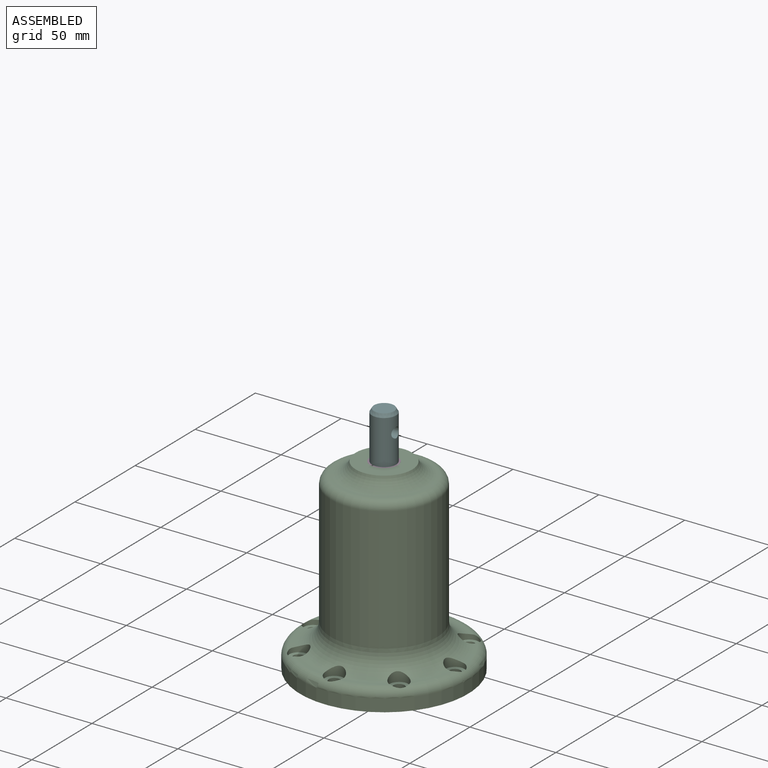
[diagram: assembled view]
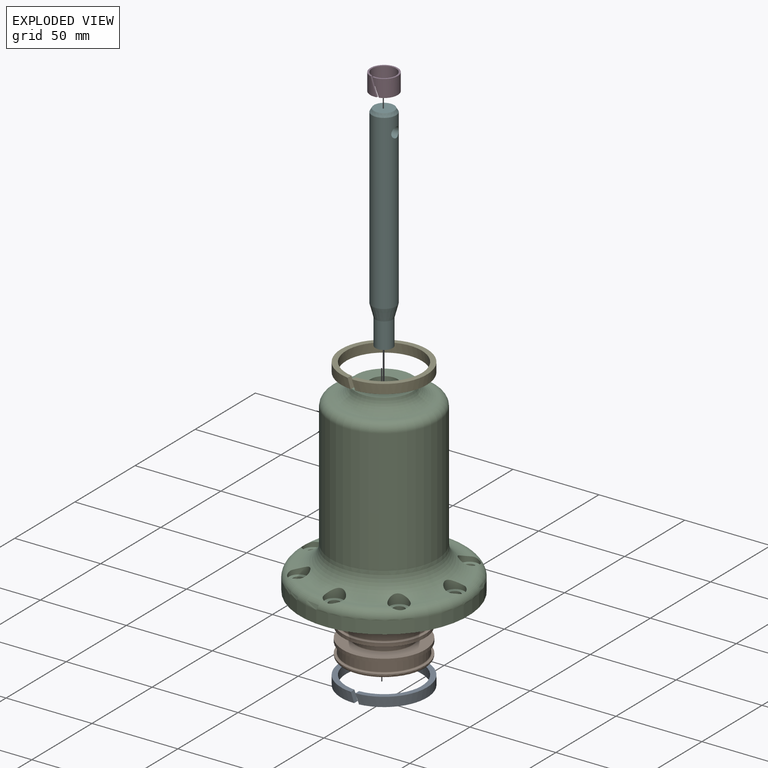
[diagram: exploded view]
GUIDED TOUR — MATED ASSEMBLY (Onshape document 48f4fec24a227de604a5e7d9, AutoMate assembly 48f4fec24a227de604a5e7d9_6dd7812956a203c2450e7267_f71f1b30207f0befcec05f34_default)

This assembly has 6 components, labeled P0..P5 below (a component is one placed occurrence of a part; the same part can appear more than once), held together by 7 mates. A mate is a constraint between two components; its type names the relative motion it leaves free:
  CYLINDRICAL — leaves both rotation about and translation along the listed axis free,
  FASTENED — locks the two components together rigidly (no relative motion),
  PLANAR — leaves sliding in the plane through the listed point (normal = the listed direction) and rotation about that normal free,
  SLIDER — leaves translation along the listed axis free.
Axis/direction vectors are unit vectors and 'through' points are millimeter coordinates, both in the assembly's world frame.

MATES
  1. PLANAR "Planar 2": P1 <-> P4, direction (0.000, 0.000, -1.000) through (0.00, 0.00, 26.60) mm
  2. CYLINDRICAL "Cylindrical 1": P4 <-> P1, axis (0.000, 0.000, 1.000) through (0.00, 0.00, 21.20) mm
  3. CYLINDRICAL "Cylindrical 3": P2 <-> P3, axis (0.000, 0.000, -1.000) through (0.00, 0.00, 100.00) mm
  4. SLIDER "Slider 1": P1 <-> P2, axis (0.000, 0.000, 1.000) through (0.00, 0.00, 4.00) mm
  5. PLANAR "Planar 1": P0 <-> P1, direction (0.000, 0.000, 1.000) through (0.01, 0.43, 10.15) mm
  6. CYLINDRICAL "Cylindrical 2": P0 <-> P1, axis (0.000, 0.000, 1.000) through (0.00, 0.00, 4.75) mm
  7. FASTENED "Fastened 1": P1 <-> P5, direction (0.000, 0.000, 1.000) through (0.00, 0.00, 27.85) mm

ASSEMBLY ORDER
  1. P1 — the base component [order heuristic]
  2. P0 [order heuristic]
  3. P2 [order heuristic]
  4. P4 [order heuristic]
  5. P5 [order heuristic]
  6. P3 [order heuristic]
Order-tag legend:
  [order heuristic] — this assembly is geometrically interlocked (no collision-free removal order exists), so components are listed in mate-graph order; insertion feasibility is not verified.

Of the 6 components, 1 carries the full construction recipe — the FeatureScript program that regenerates the part's solid from scratch; the rest are supplied as boundary geometry only.
Each toured component is shown spotlighted twice — in the assembled view, then in the exploded view, where a leader line traces a displaced component back to its assembled socket (saturated green if recipe-attached, orange if geometry-only; every other component desaturated gray) — followed by its recipe or geometry summary and the mates that hold it.
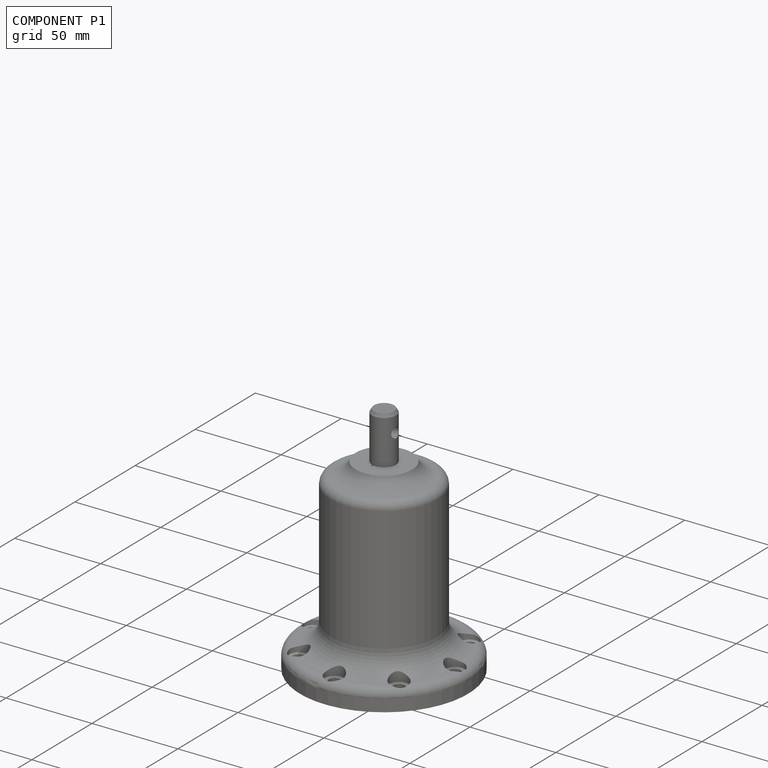
[diagram: component P1 — assembled]
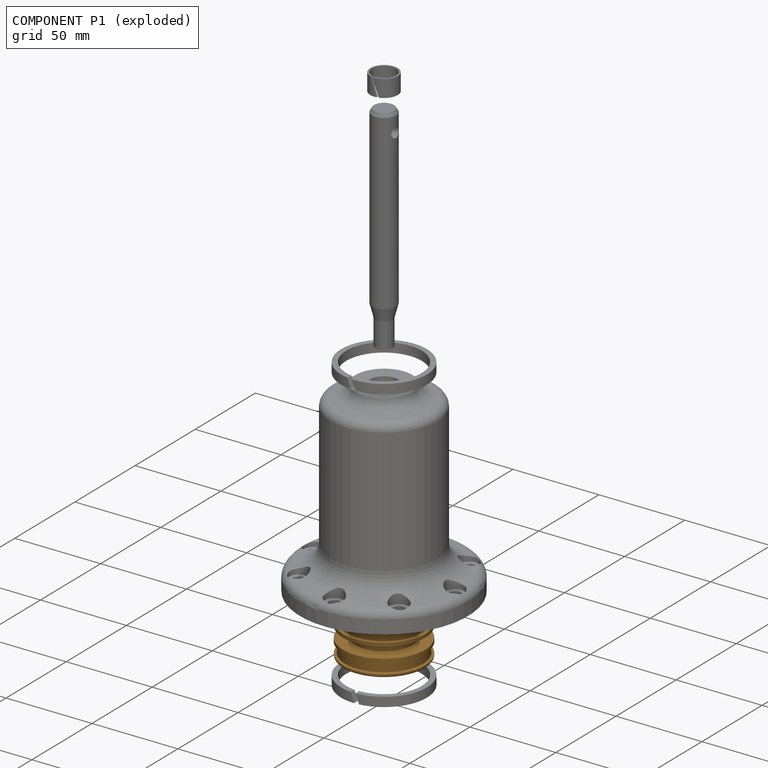
[diagram: component P1 — exploded]
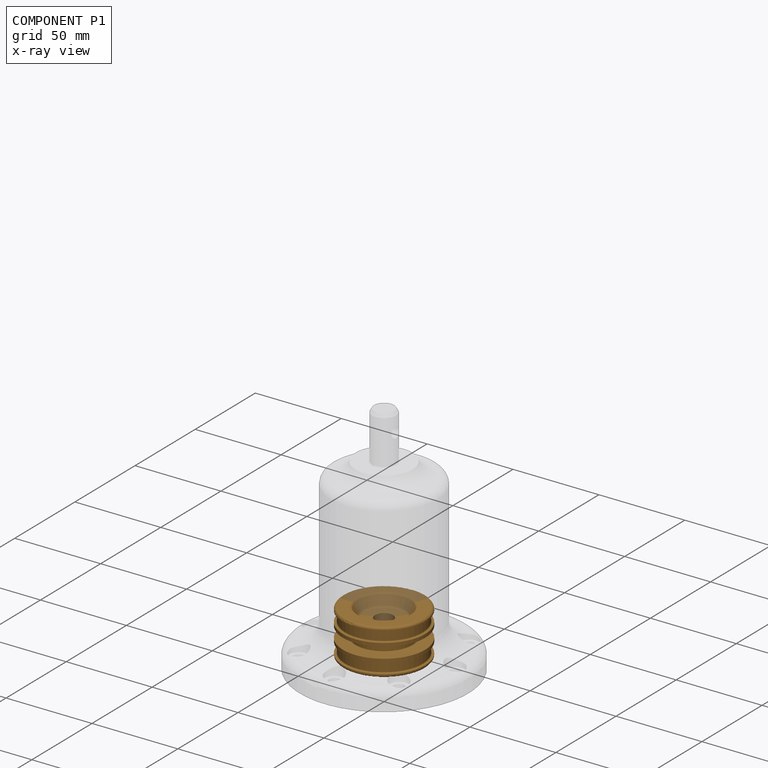
[diagram: component P1 — x-ray view]
COMPONENT P1 — geometry summary (no construction recipe available for this part):
  bounding box: 52.0 x 52.0 x 26.6 mm
  B-rep topology: 1 solid, 29 faces, 107 edges
  volume: 34067 mm^3 (47% of its bounding box)
  symmetry: revolution-symmetric about the z axis through its bounding-box center; mirror-symmetric across its x mid-plane, y mid-plane
Held by: PLANAR mate "Planar 2" to P4; CYLINDRICAL mate "Cylindrical 1" to P4; SLIDER mate "Slider 1" to P2; PLANAR mate "Planar 1" to P0; CYLINDRICAL mate "Cylindrical 2" to P0; FASTENED mate "Fastened 1" to P5.
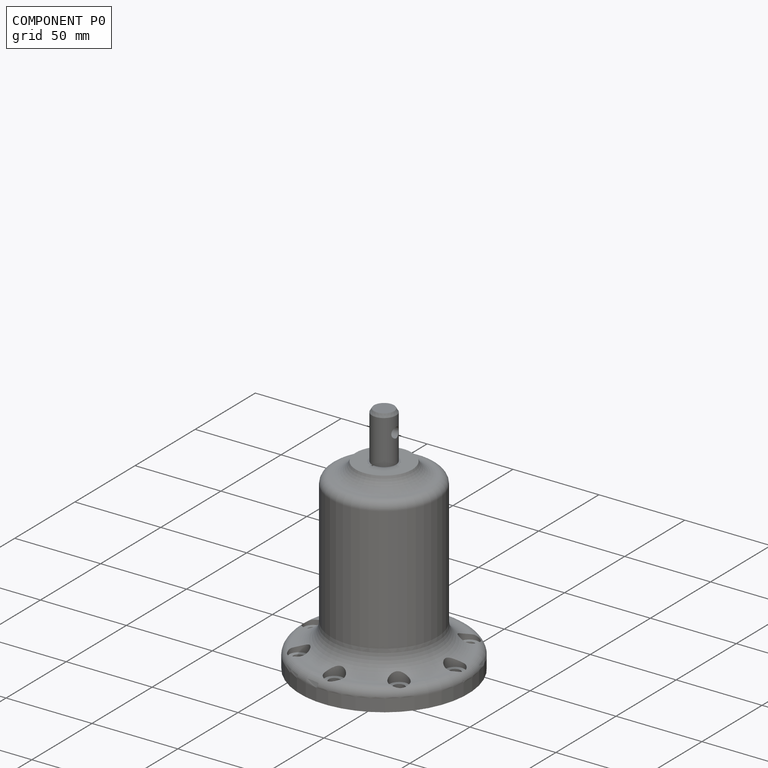
[diagram: component P0 — assembled]
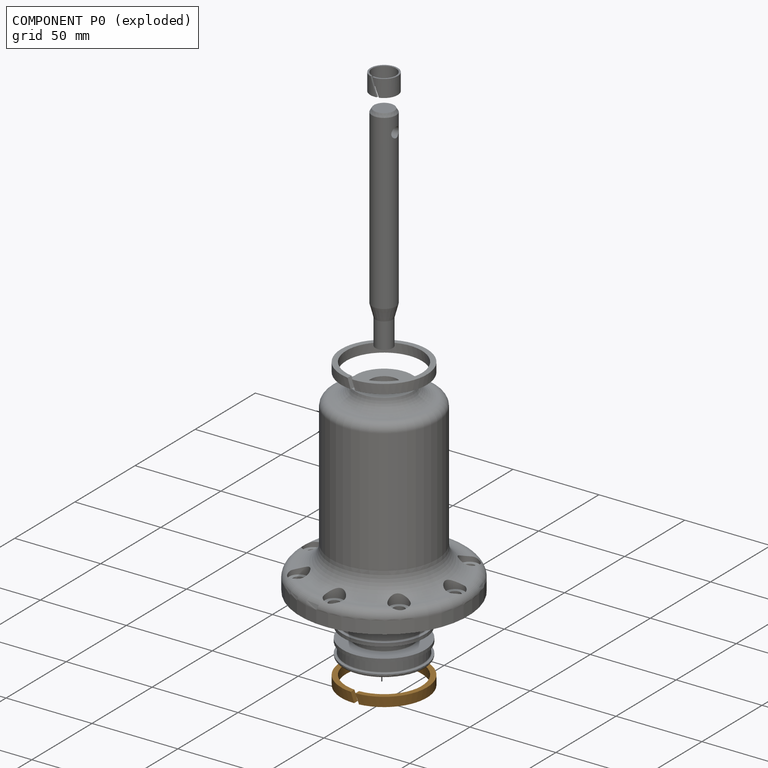
[diagram: component P0 — exploded]
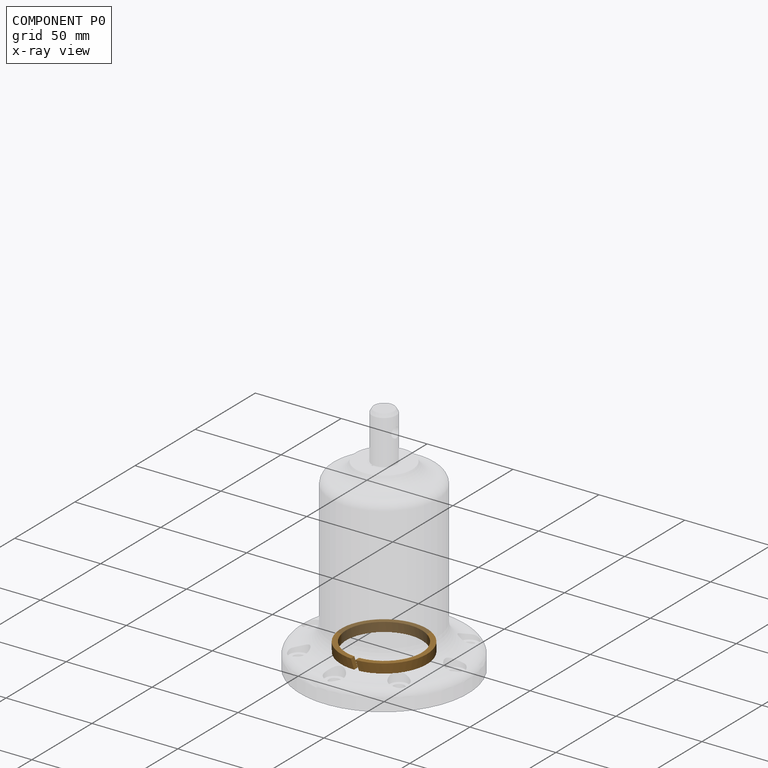
[diagram: component P0 — x-ray view]
COMPONENT P0 — geometry summary (no construction recipe available for this part):
  bounding box: 50.0 x 50.0 x 5.4 mm
  B-rep topology: 1 solid, 6 faces, 24 edges
  volume: 2349 mm^3 (17% of its bounding box)
  symmetry: 2-fold rotationally symmetric about the y axis
Held by: PLANAR mate "Planar 1" to P1; CYLINDRICAL mate "Cylindrical 2" to P1.
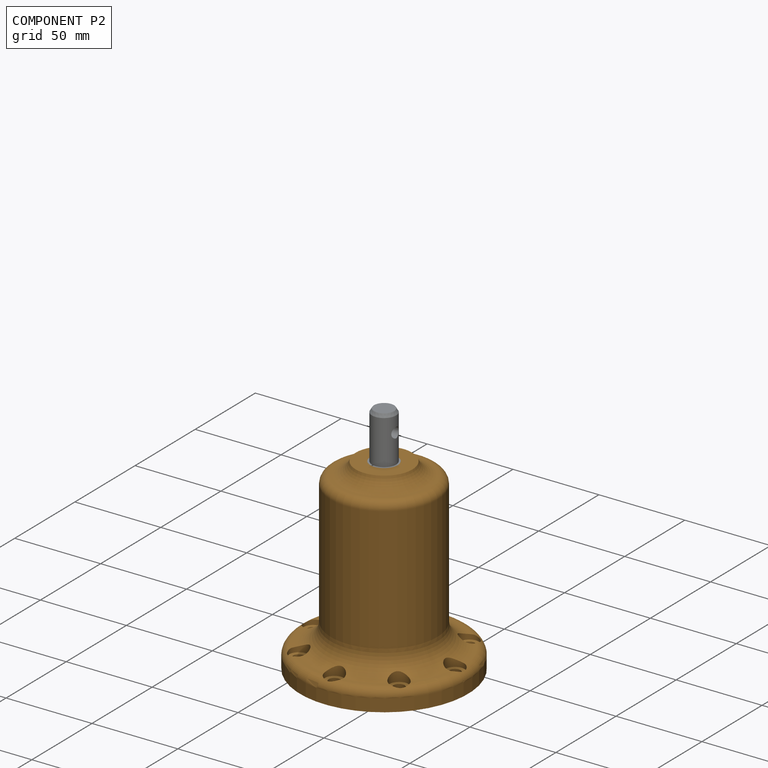
[diagram: component P2 — assembled]
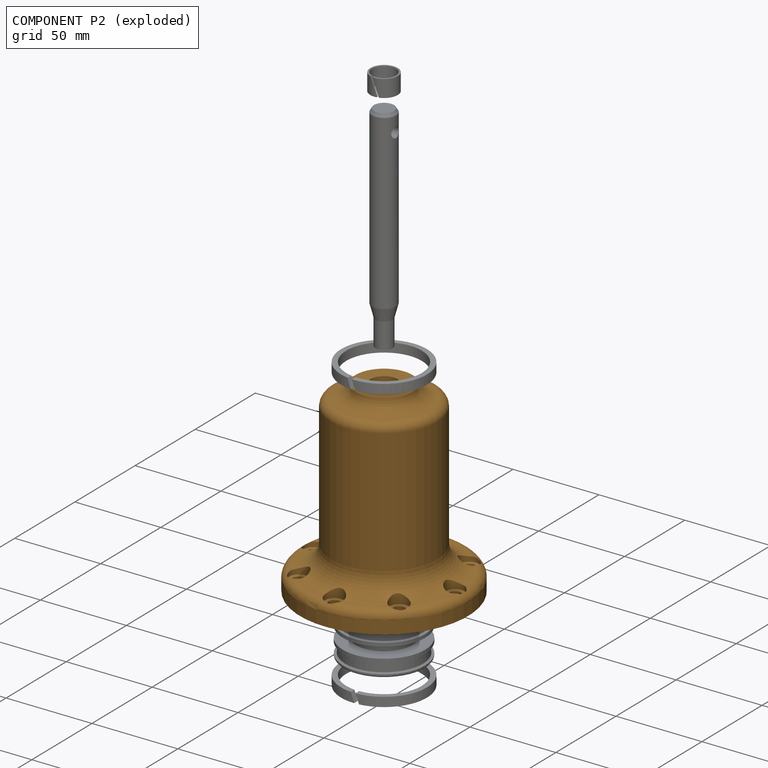
[diagram: component P2 — exploded]
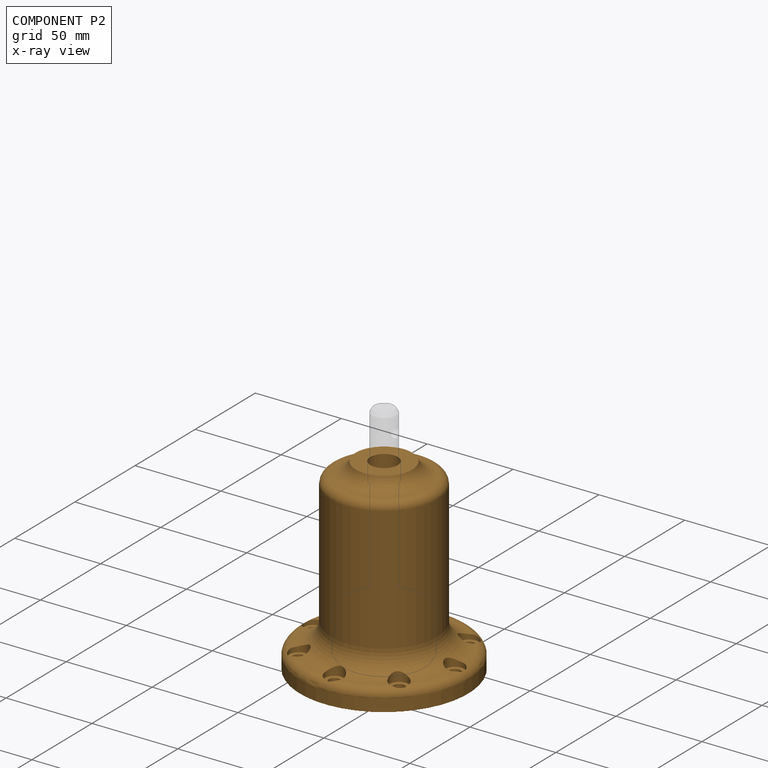
[diagram: component P2 — x-ray view]
COMPONENT P2 — geometry summary (no construction recipe available for this part):
  bounding box: 114.1 x 114.1 x 112.4 mm
  B-rep topology: 1 solid, 56 faces, 294 edges
  volume: 169365 mm^3 (12% of its bounding box)
  symmetry: mirror-symmetric across its x mid-plane
Held by: CYLINDRICAL mate "Cylindrical 3" to P3; SLIDER mate "Slider 1" to P1.
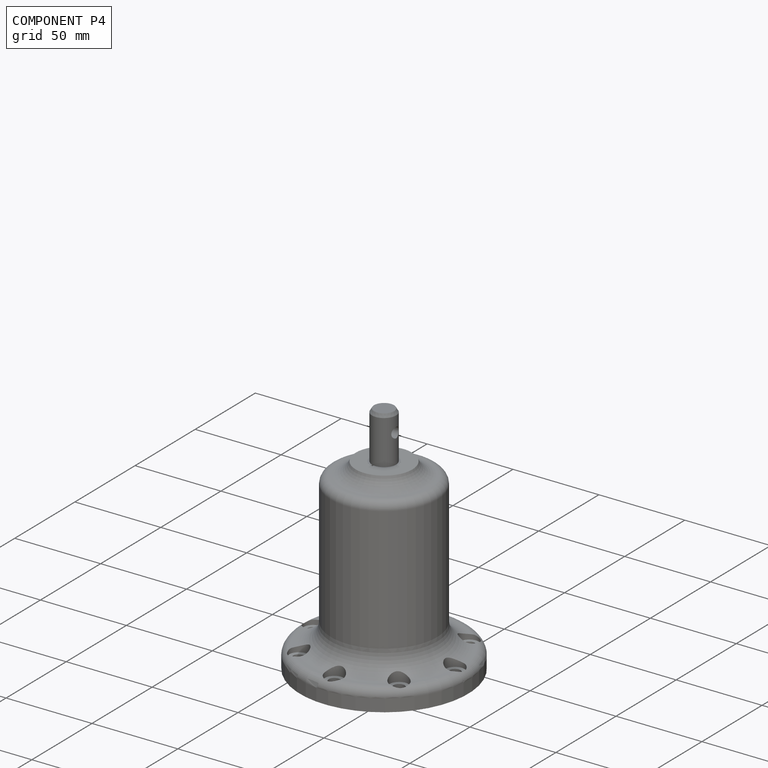
[diagram: component P4 — assembled]
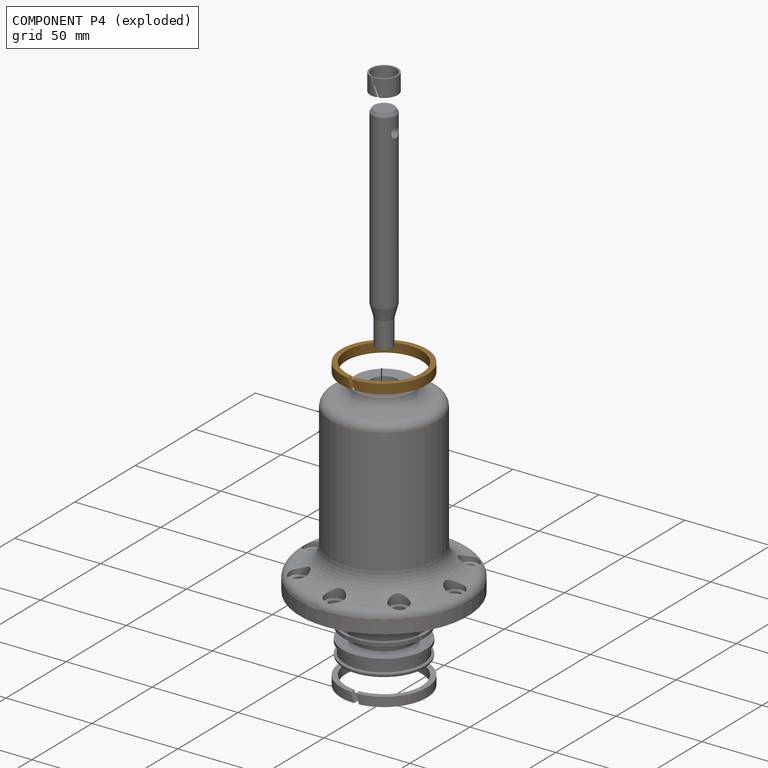
[diagram: component P4 — exploded]
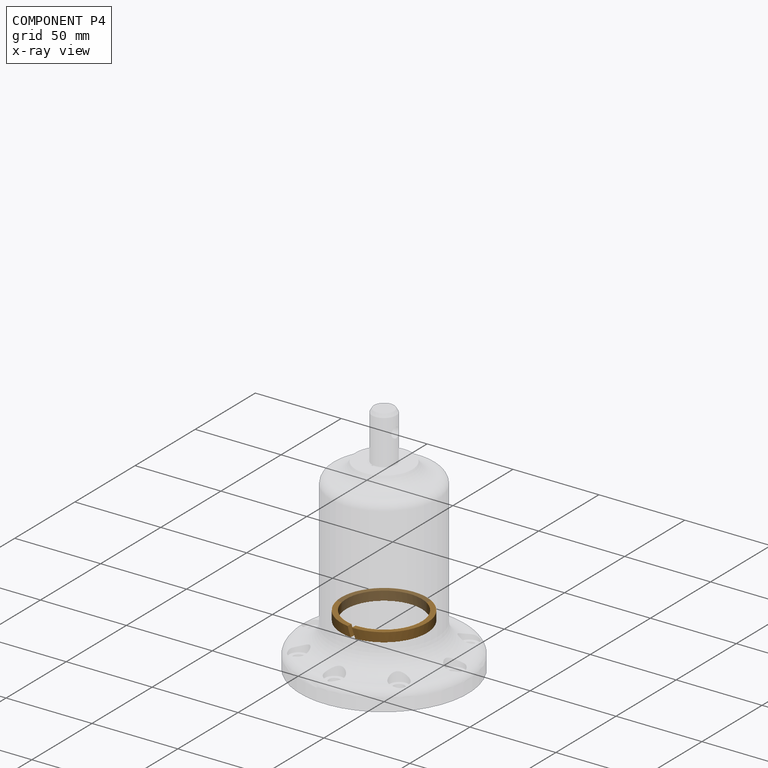
[diagram: component P4 — x-ray view]
COMPONENT P4 — geometry summary (no construction recipe available for this part):
  bounding box: 50.0 x 50.0 x 5.4 mm
  B-rep topology: 1 solid, 6 faces, 24 edges
  volume: 2349 mm^3 (17% of its bounding box)
  symmetry: 2-fold rotationally symmetric about the y axis
Held by: PLANAR mate "Planar 2" to P1; CYLINDRICAL mate "Cylindrical 1" to P1.
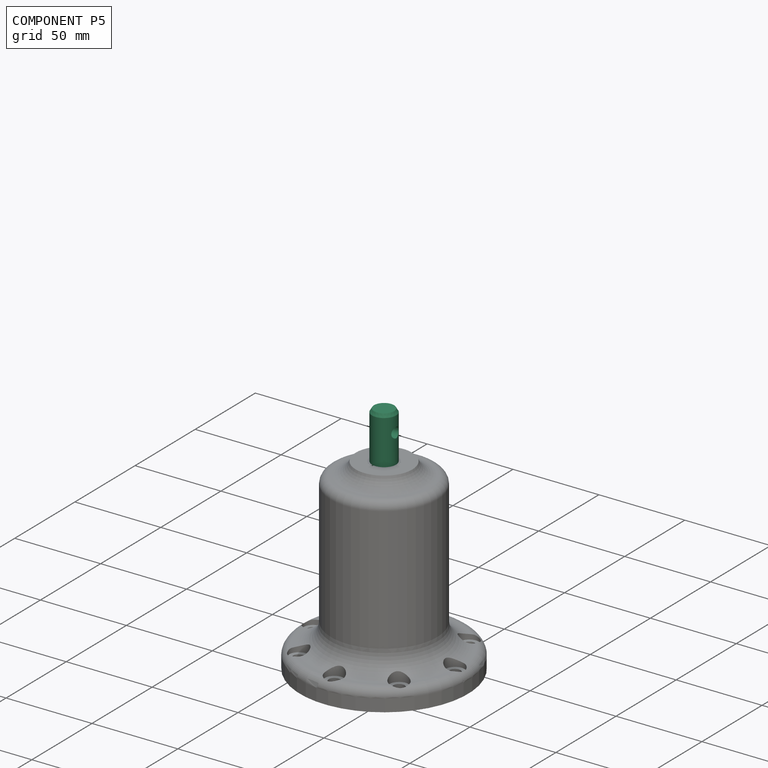
[diagram: component P5 — assembled]
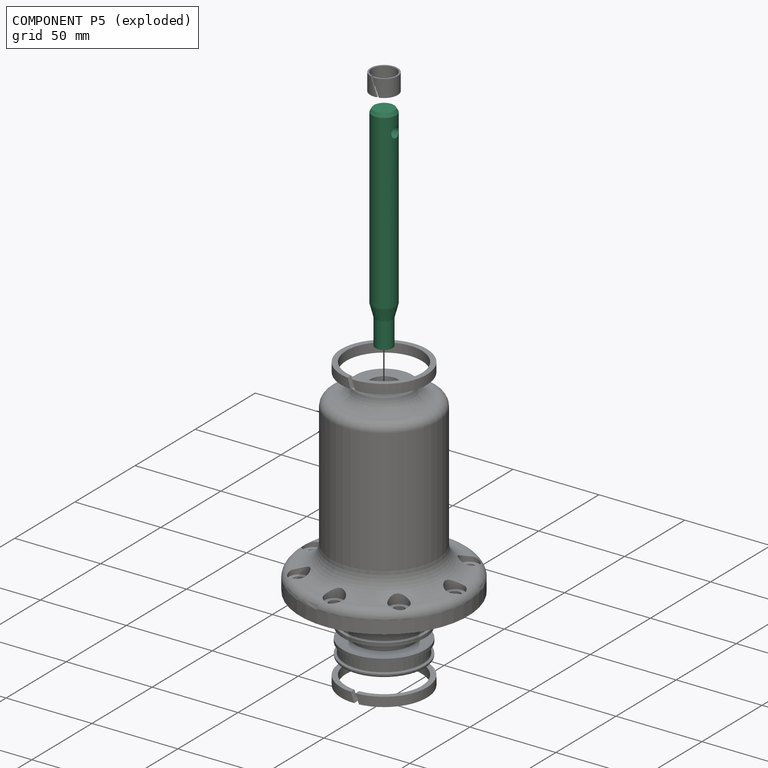
[diagram: component P5 — exploded]
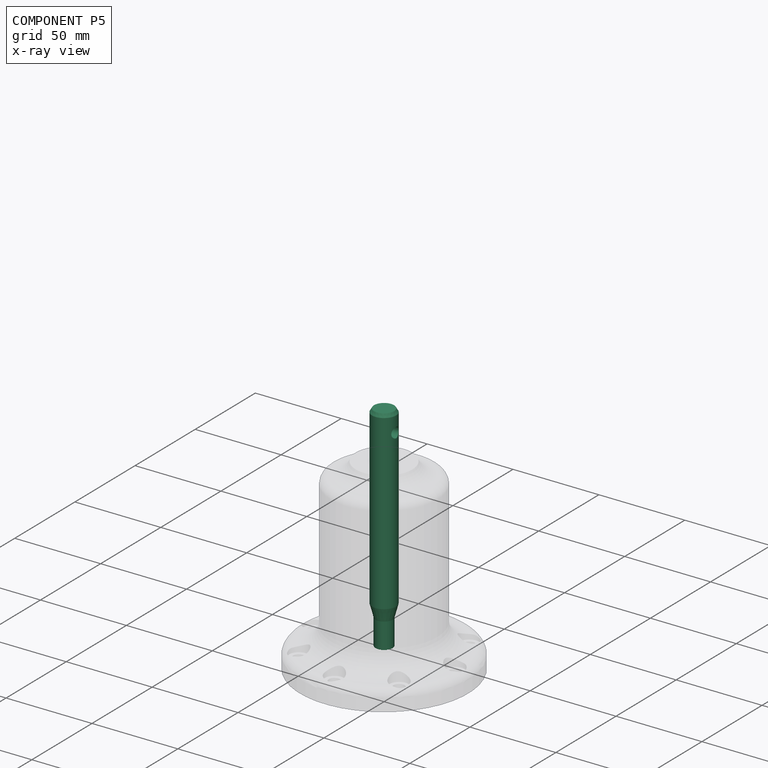
[diagram: component P5 — x-ray view]
COMPONENT P5 — recipe-attached (CADFS 00426651, mesh-verified: the recipe's output STEP matches this component's geometry to below the mesh-comparison resolution (tessellation chordal tolerance ~0.19 mm)).
Held by: FASTENED mate "Fastened 1" to P1.
Construction recipe (FeatureScript — the CAD program that rebuilds this solid; sketch coordinates are in the units given by the * unit suffixes, e.g. mm):

FeatureScript 1511;
import(path : "onshape/std/geometry.fs", version : "1511.0");
import(path : "onshape/std/common.fs", version : "1511.0");
const mm = millimeter;
const VERTEX = EntityType.VERTEX;
const EDGE = EntityType.EDGE;
const FACE = EntityType.FACE;
const BODY = EntityType.BODY;
function v(x, y){return vector(x, y);}
function OD(order){return orderDisambiguation(order);}
function OSD(set){return originalSetDisambiguation(set);}
function TD(topology){return topologyDisambiguation(topology);}
function TDD(query){return trueDependencyDisambiguation(query);}
function sQuery(a, b, c) {return sketchEntityQuery(a, b, c);}

annotation { "Feature Type Name" : "Feature", "Feature Type Description" : "" }
export const myFeature = defineFeature(function(context is Context, id is Id, definition is map)
    precondition{}
    {
        {
            var Q0;
            Q0=qCreatedBy(makeId("Top.planeOp"),FACE);
            var sketch = newSketch(context, id + "F0", { "sketchPlane" : qUnion([Q0])});
            skCircle(sketch, "E0", {"center": v(0, 0) * mm, "radius": 7 * mm});
            skSolve(sketch);
        }
        {
            var Q0;
            Q0 = qSketchRegion(id + "F0", true);
            extrude(context, id + "F1", {"entities" : qUnion([Q0]), "endBound" : BoundingType.SYMMETRIC, "depth" : 125 * mm, "offsetDistance" : 25 * mm, "hasSecondDirection" : true, "secondDirectionOppositeDirection" : true, "secondDirectionDepth" : 25 * mm});
        }
        {
            var Q0;
            Q0=qCreatedBy(makeId("Right.planeOp"),FACE);
            var sketch = newSketch(context, id + "F2", { "sketchPlane" : qUnion([Q0])});
            skCircle(sketch, "E1", {"center": v(0, 51.5) * mm, "radius": 3 * mm});
            skSolve(sketch);
        }
        {
            var Q0;
            Q0 = qSketchRegion(id + "F2", true);
            extrude(context, id + "F3", {"entities" : qUnion([Q0]), "operationType" : NewBodyOperationType.REMOVE, "endBound" : BoundingType.THROUGH_ALL, "oppositeDirection" : true, "depth" : 25 * mm, "offsetDistance" : 25 * mm, "hasSecondDirection" : true, "secondDirectionBound" : SecondDirectionBoundingType.THROUGH_ALL, "secondDirectionOppositeDirection" : false, "secondDirectionDepth" : 25 * mm});
        }
        {
            var Q0;
            Q0=qCreatedBy(makeId("Right.planeOp"),FACE);
            var sketch = newSketch(context, id + "F4", { "sketchPlane" : qUnion([Q0])});
            skLineSegment(sketch, "E2", {"start": v(-7, -40.04) * mm, "end": v(-5, -47.5) * mm});
            skLineSegment(sketch, "E3", {"start": v(-5, -47.5) * mm, "end": v(-5, -62.5) * mm});
            skLineSegment(sketch, "E4", {"start": v(-5, -62.5) * mm, "end": v(-7, -62.5) * mm});
            skLineSegment(sketch, "E5", {"start": v(-7, -62.5) * mm, "end": v(-7, -40.04) * mm});
            skLineSegment(sketch, "E6", {"start": v(0, -62.5) * mm, "end": v(0, -40.04) * mm, "construction": true});
            skSolve(sketch);
        }
        {
            var Q0;
            Q0 = qSketchRegion(id + "F4", true);
            var Q1;
            Q1=sQuery(id+"F4.wireOp",EDGE,"E6");
            revolve(context, id + "F5", {"operationType" : NewBodyOperationType.REMOVE, "surfaceOperationType" : NewSurfaceOperationType.NEW, "entities" : qUnion([Q0]), "axis" : qUnion([Q1]), "revolveType" : RevolveType.FULL, "oppositeDirection" : true});
        }
        {
            var Q0;
            Q0=makeQuery(id+"F1.opExtrude","CAP_EDGE",EDGE,{"disambiguationData":[OSD([sQuery(id+"F0.wireOp",EDGE,"E0")])],"isStart":false});
            chamfer(context, id + "F6", {"entities" : qUnion([Q0]), "chamferType" : ChamferType.OFFSET_ANGLE, "width" : 2 * mm, "oppositeDirection" : true, "angle" : 30 * degree, "tangentPropagation" : true});
        }
    });
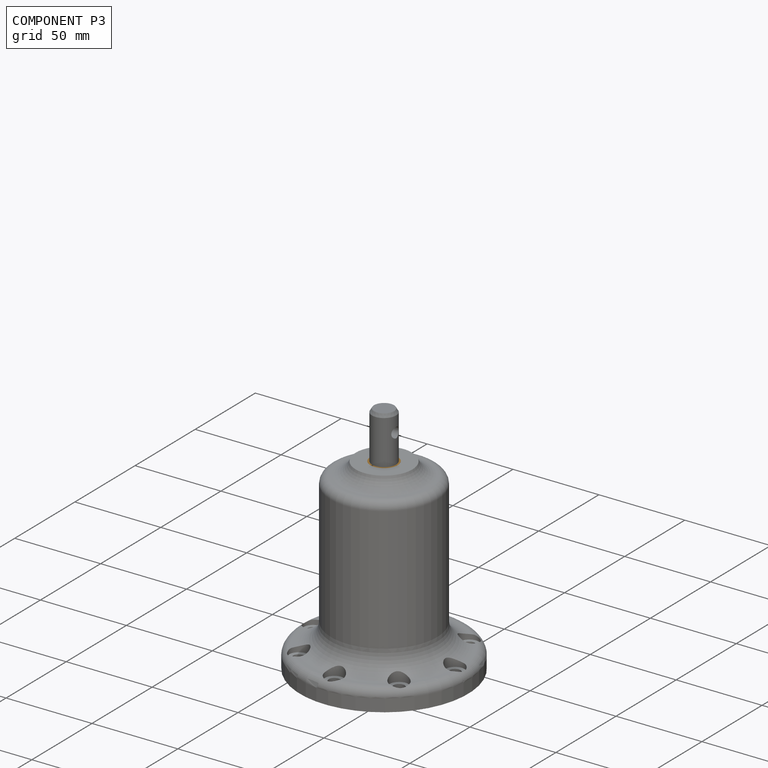
[diagram: component P3 — assembled]
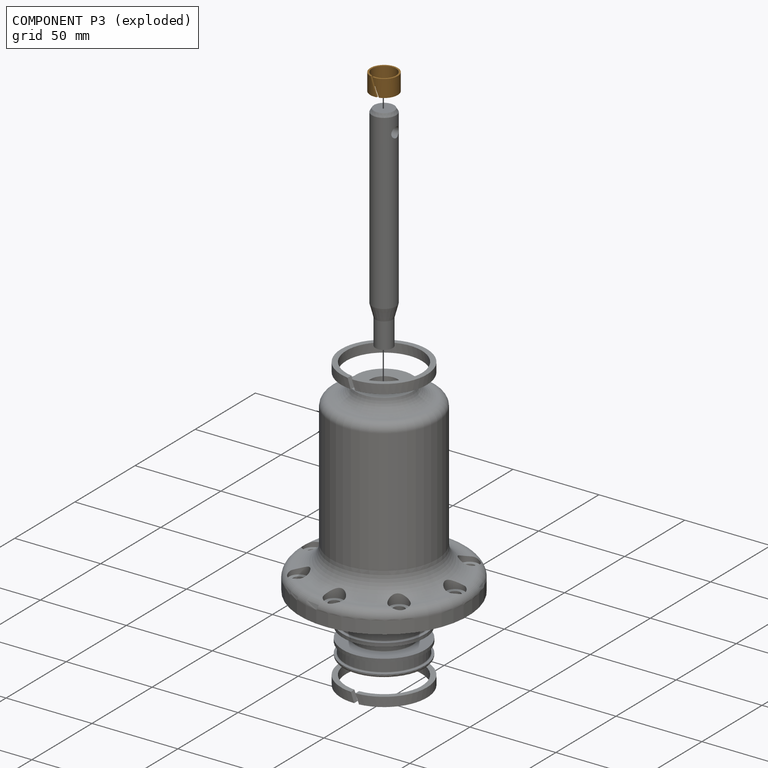
[diagram: component P3 — exploded]
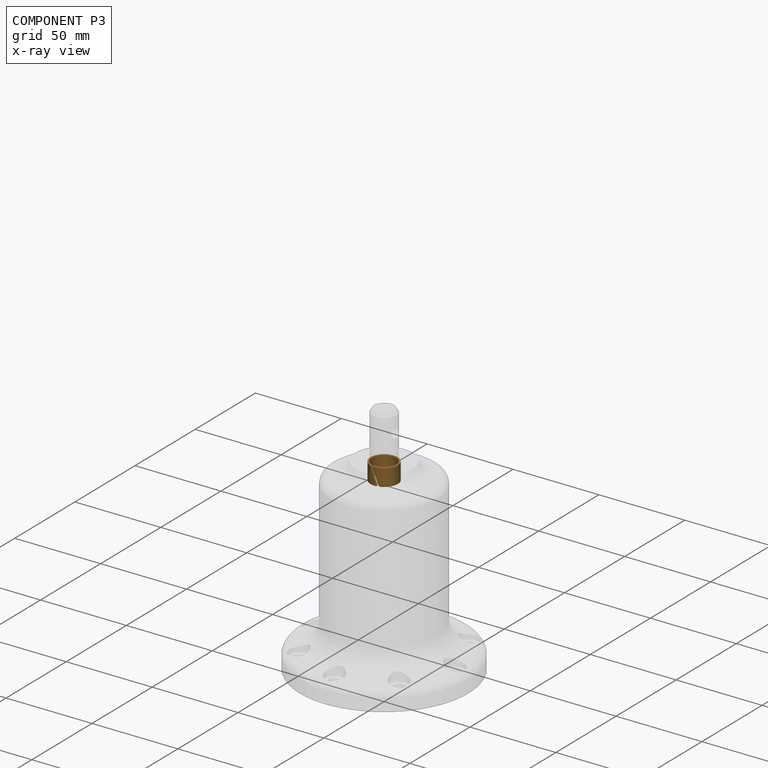
[diagram: component P3 — x-ray view]
COMPONENT P3 — geometry summary (no construction recipe available for this part):
  bounding box: 16.0 x 16.0 x 10.0 mm
  B-rep topology: 1 solid, 6 faces, 24 edges
  volume: 460 mm^3 (18% of its bounding box)
  symmetry: 2-fold rotationally symmetric about the y axis
Held by: CYLINDRICAL mate "Cylindrical 3" to P2.
PROVENANCE & LICENSES
Assembly (occurrences, transforms, mates, per-part STEP geometry): AutoMate dataset, Zenodo record 7776208, CC0.
Construction recipes: CADFS (HuggingFace VladPyatov/CADFS, CC-BY-4.0, layered over the ABC dataset), FeatureScript reconstruction programs keyed by ABC model id.
Join: ABC meta listings map ABC model id -> Onshape documentId; within a shared document, parts are matched by geometric signature (bounding-box dims + volume at 0.1% relative tolerance, exact B-rep face/solid counts).
Verification: 1 of this assembly's 6 components carries a recipe attachment, and every attachment is mesh-verified: the CADFS STEP and the AutoMate member STEP were compared as meshes in their shared local frame (symmetric sampled-point-to-mesh distance); worst across the 1 attachment: below the mesh-comparison resolution (tessellation chordal tolerance ~0.19 mm) on a 127 mm part.
Renders: orthographic iso camera (az 35 / el 25); the floor grid conveys scale (grid pitch printed in each image; no ruler). In the exploded view each component is displaced by its stored offset vector: the offsets alone carry the explosion direction (mate normal/axis signs are not orientation cues and do not encode it), and separation distances are assigned per mate-chain, not proportionally to assembly-order depth.
